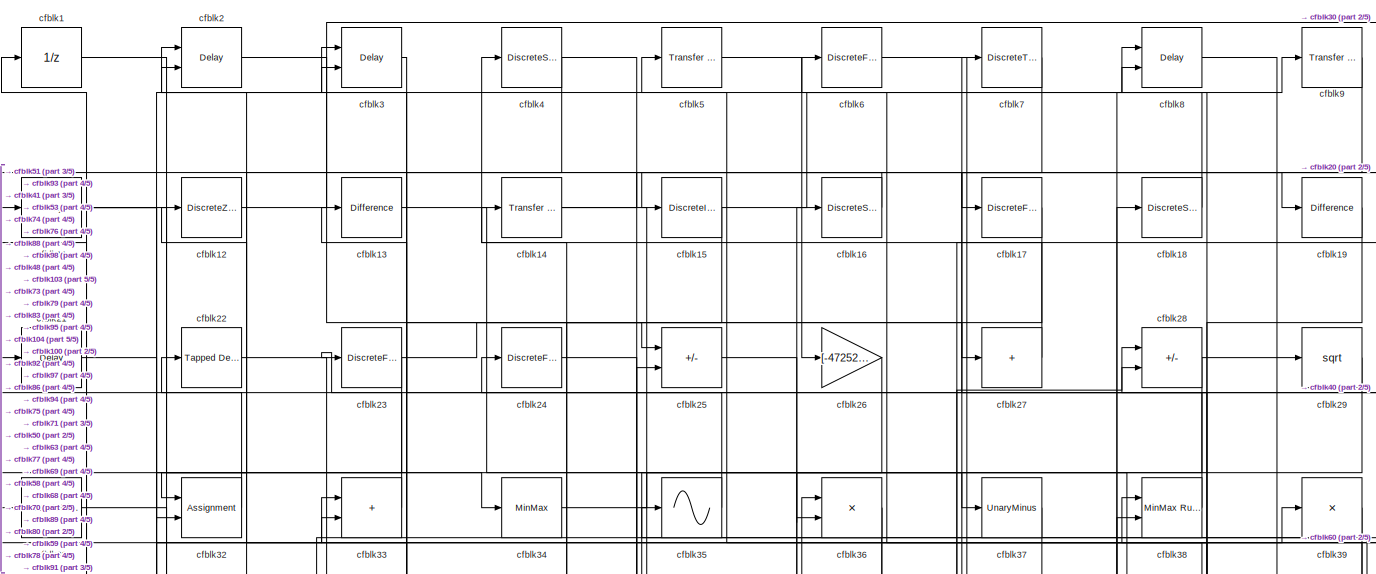
[diagram: root canvas - part 1/5, full width, top band]
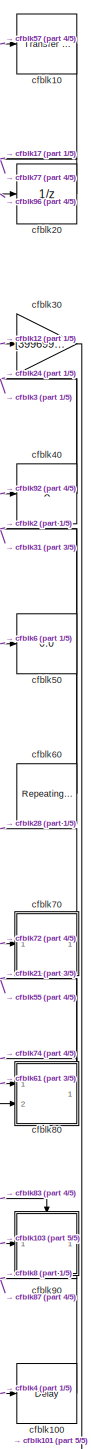
[diagram: root canvas - part 2/5, right side, full height]
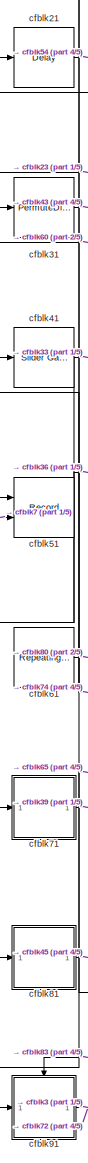
[diagram: root canvas - part 3/5, middle left region]
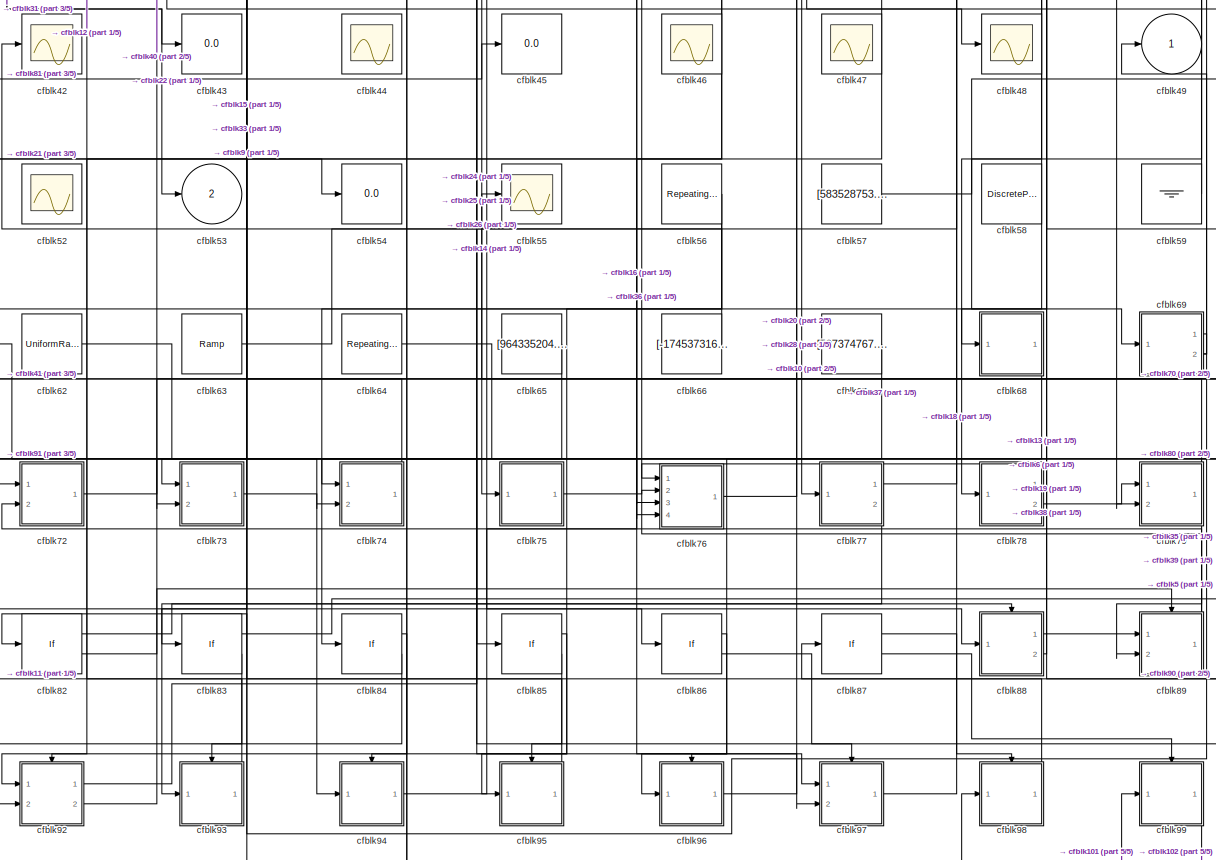
[diagram: root canvas - part 4/5, full width, middle band]
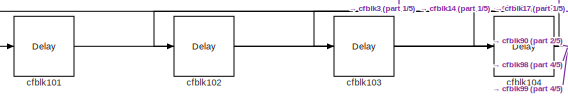
[diagram: root canvas - part 5/5, bottom left region]
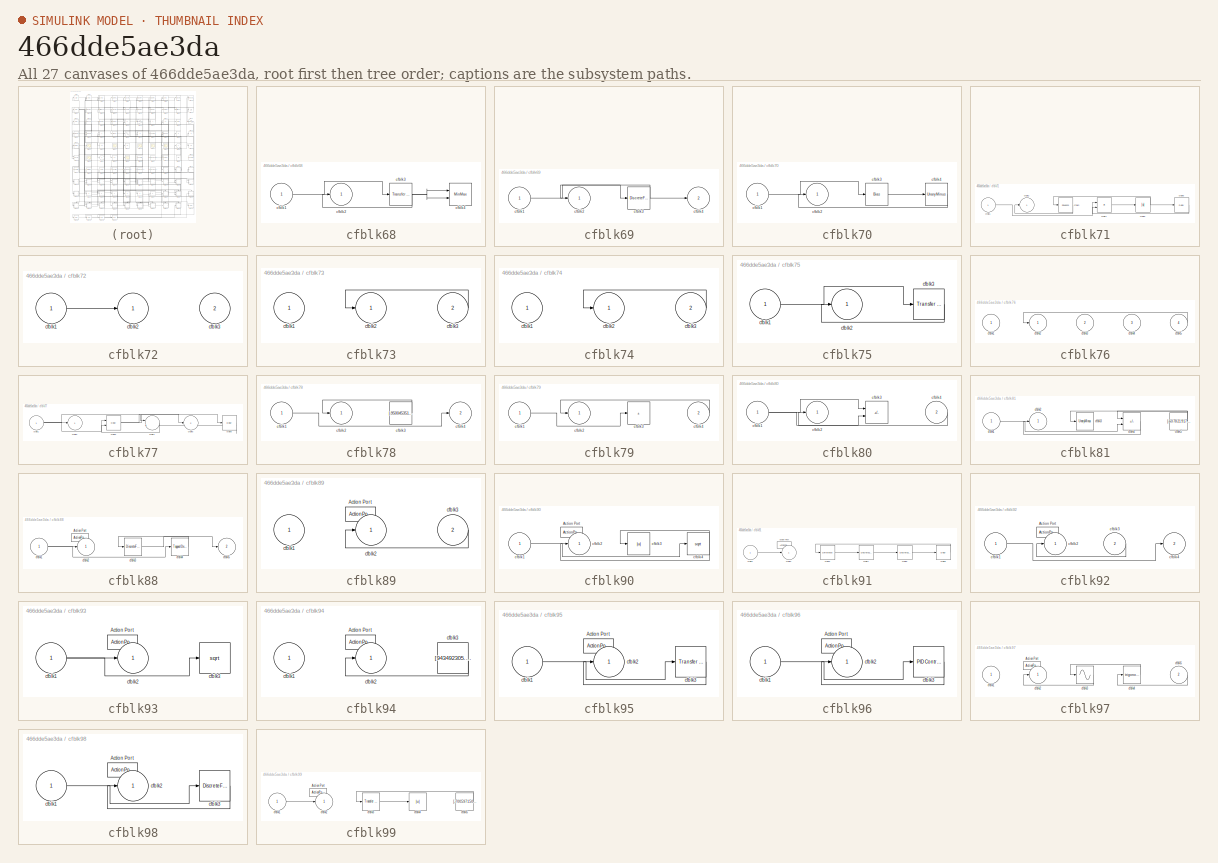
[diagram: thumbnail index - all 27 canvases of the model, root first then tree order]
MODEL slx_466dde5ae3da
KIND model
CONFIG AbsTol = auto
CONFIG EnableMultiTasking = off
CONFIG FixedStep = auto
CONFIG MaxStep = auto
CONFIG MinStep = auto
CONFIG RelTol = 1e-3
CONFIG SampleTimeConstraint = Unconstrained
CONFIG SolverName = VariableStepAuto
CONFIG StartTime = 0.0
CONFIG StopTime = 10.0
BLOCK [UnitDelay] cfblk1
  HasFrameUpgradeWarning = on
BLOCK [Reference] cfblk10  REF=simulink/Discrete/Transfer Fcn
Lead or Lag
  Ports = [1, 1]
  SourceBlock = simulink/Discrete/Transfer Fcn\nLead or Lag
  SourceProductBaseCode = SL
  SourceType = Lead or Lag Compensator
BLOCK [Delay] cfblk100
  InputPortMap = u0
  Ports = [1, 1]
  SampleTime = 1
BLOCK [Delay] cfblk101
  InputPortMap = u0
  Ports = [1, 1]
  SampleTime = 1
BLOCK [Delay] cfblk102
  InputPortMap = u0
  Ports = [1, 1]
  SampleTime = 1
BLOCK [Delay] cfblk103
  InputPortMap = u0
  Ports = [1, 1]
  SampleTime = 1
BLOCK [Delay] cfblk104
  InputPortMap = u0
  Ports = [1, 1]
  SampleTime = 1
BLOCK [Delay] cfblk11
  InputPortMap = u0
  Ports = [1, 1]
  SampleTime = 1
BLOCK [DiscreteZeroPole] cfblk12
  Gain = 1
  Poles = [0 0.5]
BLOCK [Reference] cfblk13  REF=simulink/Discrete/Difference
  Ports = [1, 1]
  SourceBlock = simulink/Discrete/Difference
  SourceProductBaseCode = SL
  SourceType = Difference
BLOCK [Reference] cfblk14  REF=simulink/Discrete/Transfer Fcn
Real Zero
  Ports = [1, 1]
  SourceBlock = simulink/Discrete/Transfer Fcn\nReal Zero
  SourceProductBaseCode = SL
  SourceType = Transfer Fcn Real Zero
BLOCK [DiscreteIntegrator] cfblk15
  ICPrevOutput = DiscIntNeverNeededParam
  ICPrevScaledInput = DiscIntNeverNeededParam
  InitialConditionSetting = Auto
  Ports = [1, 1]
BLOCK [DiscreteStateSpace] cfblk16
BLOCK [DiscreteFilter] cfblk17
  InputPortMap = u0
  Ports = [1, 1]
  SampleTime = 1
BLOCK [DiscreteStateSpace] cfblk18
BLOCK [Reference] cfblk19  REF=simulink/Discrete/Difference
  Ports = [1, 1]
  SourceBlock = simulink/Discrete/Difference
  SourceProductBaseCode = SL
  SourceType = Difference
BLOCK [Delay] cfblk2
  InputPortMap = u0,e6
  Ports = [2, 1]
  SampleTime = 1
  ShowEnablePort = on
BLOCK [UnitDelay] cfblk20
  HasFrameUpgradeWarning = on
BLOCK [Delay] cfblk21
  InputPortMap = u0
  Ports = [1, 1]
  SampleTime = 1
BLOCK [Reference] cfblk22  REF=simulink/Discrete/Tapped Delay
  Ports = [1, 1]
  SourceBlock = simulink/Discrete/Tapped Delay
  SourceProductBaseCode = SL
  SourceType = Tapped Delay Line
BLOCK [DiscreteFir] cfblk23
  InputPortMap = u0
  OutputPortMap = o0
  Ports = [1, 1]
  SampleTime = 1
BLOCK [DiscreteFilter] cfblk24
  InputPortMap = u0
  Ports = [1, 1]
  SampleTime = 1
BLOCK [Sum] cfblk25
  IconShape = rectangular
  Inputs = +-
  Ports = [2, 1]
BLOCK [Gain] cfblk26
  Gain = [-472524367.024752]
BLOCK [Sum] cfblk27
  IconShape = rectangular
  Inputs = +
  Ports = [1, 1]
BLOCK [Sum] cfblk28
  IconShape = rectangular
  Inputs = --
  Ports = [2, 1]
BLOCK [Sqrt] cfblk29
BLOCK [Delay] cfblk3
  DelayLengthSource = Input port
  InputPortMap = u0,p1
  Ports = [2, 1]
  SampleTime = 1
BLOCK [Gain] cfblk30
  Gain = [399699221.381525]
BLOCK [PermuteDimensions] cfblk31
BLOCK [Assignment] cfblk32
  DiagnosticForDimensions = Warning
  IndexOptions = Index vector (dialog)
  Indices = 1
  OutputSizes = 1
  Ports = [2, 1]
BLOCK [Sum] cfblk33
  IconShape = rectangular
  Ports = [2, 1]
BLOCK [MinMax] cfblk34
  Function = max
  Ports = [1, 1]
BLOCK [Sin] cfblk35
  Ports = [1, 1]
  SampleTime = 0
  TimeSource = Use external signal
BLOCK [Product] cfblk36
  Ports = [2, 1]
BLOCK [UnaryMinus] cfblk37
BLOCK [Reference] cfblk38  REF=simulink/Math
Operations/MinMax
Running
Resettable
  Ports = [2, 1]
  SourceBlock = simulink/Math\nOperations/MinMax\nRunning\nResettable
  SourceProductBaseCode = SL
  SourceType = MinMax Running Resettable
BLOCK [Product] cfblk39
  Inputs = *
  Ports = [1, 1]
BLOCK [DiscreteStateSpace] cfblk4
BLOCK [Product] cfblk40
  Inputs = *
  Ports = [1, 1]
BLOCK [Reference] cfblk41  REF=simulink/Math
Operations/Slider
Gain
  Ports = [1, 1]
  SourceBlock = simulink/Math\nOperations/Slider\nGain
  SourceProductBaseCode = SL
  SourceType = Slider Gain
BLOCK [Scope] cfblk42
  Floating = off
  NumInputPorts = 1
  Ports = [1]
BLOCK [Display] cfblk43
  Decimation = 1
  Ports = [1]
BLOCK [Scope] cfblk44
  Floating = on
  NumInputPorts = 1
  Ports = []
BLOCK [Display] cfblk45
  Decimation = 1
  Ports = [1]
BLOCK [Scope] cfblk46
  Floating = on
  NumInputPorts = 1
  Ports = []
BLOCK [Scope] cfblk47
  Floating = on
  NumInputPorts = 1
  Ports = []
BLOCK [Scope] cfblk48
  Floating = off
  NumInputPorts = 1
  Ports = [1]
BLOCK [Outport] cfblk49
BLOCK [Reference] cfblk5  REF=simulink/Discrete/Transfer Fcn
Lead or Lag
  Ports = [1, 1]
  SourceBlock = simulink/Discrete/Transfer Fcn\nLead or Lag
  SourceProductBaseCode = SL
  SourceType = Lead or Lag Compensator
BLOCK [Display] cfblk50
  Decimation = 1
  Ports = [1]
BLOCK [Record] cfblk51
  CompatibilityTag = XY
  FileSettingsInternal = {"entries":[{"content":{"excelSettings":{"content":{},"type":"Streamout.ExcelSettings"}},"type":"Streamout.FileSettingStorage","uuid":"e13d3856-0151-4027-9874-799dcbb3d0c3"}],"packageUris":["http://schema.mathworks.com/mf0/streamout_blocks/R2020a"],"version":"1.0"}
  Layout = [1 1]
  Ports = [2]
  SignalsInternal = {"entries":[{"content":{"signals":[{"content":{"blockPath":["sampleModel279/cfblk51"],"channel":[],"dimensions":[1],"domain":"sampleModel279/cfblk51","lineColor":"#a2142f","plots":[1],"port":1,"sid":[""],"signalID":11815,"signalName":"cfblk23"},"type":"RecordBlkView.Signal","uuid":"6bdaff20-d8c6-4827-94f0-403183801f87"},{"content":{"blockPath":["sampleModel279/cfblk51"],"channel":[],"dimensions":[...<+384ch>
  VisualizationBindings = {"xyplotplugin":{"info":[{"series":[{"bindingParametersList":[{"parameter":"X-Axis","signalID":11815,"signalName":"cfblk23"},{"parameter":"Y-Axis","signalID":11819,"signalName":"cfblk7"}],"seriesID":62469}],"subplotID":1}]}}
BLOCK [Scope] cfblk52
  Floating = on
  NumInputPorts = 1
  Ports = []
BLOCK [Outport] cfblk53
  Port = 2
BLOCK [Display] cfblk54
  Decimation = 1
  Ports = [1]
BLOCK [Scope] cfblk55
  Floating = off
  NumInputPorts = 1
  Ports = [1]
BLOCK [Reference] cfblk56  REF=simulink/Sources/Repeating
Sequence
Interpolated
  Ports = [0, 1]
  SourceBlock = simulink/Sources/Repeating\nSequence\nInterpolated
  SourceProductBaseCode = SL
  SourceType = Repeating Sequence Interpolated
BLOCK [Constant] cfblk57
  SampleTime = 1
  Value = [583528753.265346]
BLOCK [DiscretePulseGenerator] cfblk58
  Amplitude = [-608958195.192248]
  Period = [96930117.264674]
  PhaseDelay = [9.000000]
  Ports = [0, 1]
  PulseType = Time based
  PulseWidth = 5
BLOCK [Ground] cfblk59
BLOCK [DiscreteFilter] cfblk6
  InputPortMap = u0
  Ports = [1, 1]
  SampleTime = 1
BLOCK [Reference] cfblk60  REF=simulink/Sources/Repeating
Sequence
Interpolated
  Ports = [0, 1]
  SourceBlock = simulink/Sources/Repeating\nSequence\nInterpolated
  SourceProductBaseCode = SL
  SourceType = Repeating Sequence Interpolated
BLOCK [Reference] cfblk61  REF=simulink/Sources/Repeating
Sequence
  Ports = [0, 1]
  SourceBlock = simulink/Sources/Repeating\nSequence
  SourceProductBaseCode = SL
  SourceType = Repeating table
BLOCK [UniformRandomNumber] cfblk62
  Maximum = [2711065953.177605]
  Minimum = [-6293746588.256409]
  SampleTime = 0.1
  Seed = [99812368.000000]
BLOCK [Reference] cfblk63  REF=simulink/Sources/Ramp
  Ports = [0, 1]
  SourceBlock = simulink/Sources/Ramp
  SourceProductBaseCode = SL
  SourceType = Ramp
BLOCK [Reference] cfblk64  REF=simulink/Sources/Repeating
Sequence
Stair
  Ports = [0, 1]
  SourceBlock = simulink/Sources/Repeating\nSequence\nStair
  SourceProductBaseCode = SL
  SourceType = Repeating Sequence Stair
BLOCK [Constant] cfblk65
  SampleTime = 1
  Value = [964335204.110092]
BLOCK [Constant] cfblk66
  SampleTime = 1
  Value = [-174537316.929179]
BLOCK [Constant] cfblk67
  SampleTime = 1
  Value = [507374767.085922]
BLOCK [SubSystem] cfblk68
  Ports = [1, 1]
  RequestExecContextInheritance = off
BLOCK [Inport] cfblk68/cfblk1
BLOCK [Outport] cfblk68/cfblk2
BLOCK [Reference] cfblk68/cfblk3  REF=simulink/Discrete/Transfer Fcn
Lead or Lag
  Ports = [1, 1]
  SourceBlock = simulink/Discrete/Transfer Fcn\nLead or Lag
  SourceProductBaseCode = SL
  SourceType = Lead or Lag Compensator
BLOCK [MinMax] cfblk68/cfblk4
  Inputs = 2
  Ports = [2, 1]
BLOCK [SubSystem] cfblk69
  Ports = [1, 2]
  RequestExecContextInheritance = off
BLOCK [Inport] cfblk69/cfblk1
BLOCK [Outport] cfblk69/cfblk2
BLOCK [DiscreteFir] cfblk69/cfblk3
  InputPortMap = u0
  OutputPortMap = o0
  Ports = [1, 1]
  SampleTime = 1
BLOCK [Outport] cfblk69/cfblk4
  Port = 2
BLOCK [DiscreteTransferFcn] cfblk7
  InputPortMap = u0
  Ports = [1, 1]
  SampleTime = 1
BLOCK [SubSystem] cfblk70
  Ports = [1, 1]
  RequestExecContextInheritance = off
BLOCK [Inport] cfblk70/cfblk1
BLOCK [Outport] cfblk70/cfblk2
BLOCK [Bias] cfblk70/cfblk3
  Bias = [-814915214.973825]
  SaturateOnIntegerOverflow = off
BLOCK [UnaryMinus] cfblk70/cfblk4
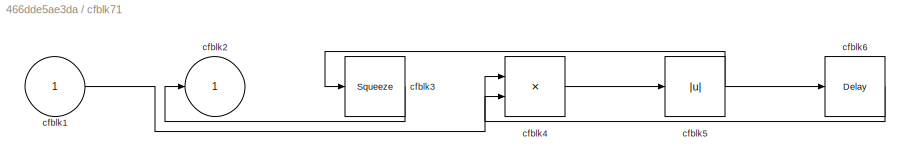
BLOCK [SubSystem] cfblk71
  Ports = [1, 1]
  RequestExecContextInheritance = off
BLOCK [Inport] cfblk71/cfblk1
BLOCK [Outport] cfblk71/cfblk2
BLOCK [Squeeze] cfblk71/cfblk3
BLOCK [Product] cfblk71/cfblk4
  Ports = [2, 1]
BLOCK [Abs] cfblk71/cfblk5
  SaturateOnIntegerOverflow = off
BLOCK [Delay] cfblk71/cfblk6
  InputPortMap = u0
  Ports = [1, 1]
  SampleTime = 1
BLOCK [SubSystem] cfblk72
  Ports = [2, 1]
  RequestExecContextInheritance = off
BLOCK [Inport] cfblk72/cfblk1
BLOCK [Outport] cfblk72/cfblk2
BLOCK [Inport] cfblk72/cfblk3
  Port = 2
BLOCK [SubSystem] cfblk73
  Ports = [2, 1]
  RequestExecContextInheritance = off
BLOCK [Inport] cfblk73/cfblk1
BLOCK [Outport] cfblk73/cfblk2
BLOCK [Inport] cfblk73/cfblk3
  Port = 2
BLOCK [SubSystem] cfblk74
  Ports = [2, 1]
  RequestExecContextInheritance = off
BLOCK [Inport] cfblk74/cfblk1
BLOCK [Outport] cfblk74/cfblk2
BLOCK [Inport] cfblk74/cfblk3
  Port = 2
BLOCK [SubSystem] cfblk75
  Ports = [1, 1]
  RequestExecContextInheritance = off
BLOCK [Inport] cfblk75/cfblk1
BLOCK [Outport] cfblk75/cfblk2
BLOCK [Reference] cfblk75/cfblk3  REF=simulink/Discrete/Transfer Fcn
First Order
  Ports = [1, 1]
  SourceBlock = simulink/Discrete/Transfer Fcn\nFirst Order
  SourceProductBaseCode = SL
  SourceType = First Order Transfer Fcn
BLOCK [SubSystem] cfblk76
  Ports = [4, 1]
  RequestExecContextInheritance = off
BLOCK [Inport] cfblk76/cfblk1
BLOCK [Outport] cfblk76/cfblk2
BLOCK [Inport] cfblk76/cfblk3
  Port = 2
BLOCK [Inport] cfblk76/cfblk4
  Port = 3
BLOCK [Inport] cfblk76/cfblk5
  Port = 4
BLOCK [SubSystem] cfblk77
  Ports = [1, 2]
  RequestExecContextInheritance = off
BLOCK [Inport] cfblk77/cfblk1
BLOCK [Outport] cfblk77/cfblk2
BLOCK [Delay] cfblk77/cfblk3
  InputPortMap = u0,e6
  Ports = [2, 1]
  SampleTime = 1
  ShowEnablePort = on
BLOCK [Sum] cfblk77/cfblk4
  Inputs = |++
  Ports = [2, 1]
BLOCK [Outport] cfblk77/cfblk5
  Port = 2
BLOCK [Delay] cfblk77/cfblk6
  InputPortMap = u0
  Ports = [1, 1]
  SampleTime = 1
BLOCK [SubSystem] cfblk78
  Ports = [1, 2]
  RequestExecContextInheritance = off
BLOCK [Inport] cfblk78/cfblk1
BLOCK [Outport] cfblk78/cfblk2
BLOCK [Constant] cfblk78/cfblk3
  SampleTime = 1
  Value = [-950045351.686305]
BLOCK [Outport] cfblk78/cfblk4
  Port = 2
BLOCK [SubSystem] cfblk79
  Ports = [2, 1]
  RequestExecContextInheritance = off
BLOCK [Inport] cfblk79/cfblk1
BLOCK [Outport] cfblk79/cfblk2
BLOCK [Sum] cfblk79/cfblk3
  IconShape = rectangular
  Inputs = +
  Ports = [1, 1]
BLOCK [Inport] cfblk79/cfblk4
  Port = 2
BLOCK [Delay] cfblk8
  InputPortMap = u0,e6
  Ports = [2, 1]
  SampleTime = 1
  ShowEnablePort = on
BLOCK [SubSystem] cfblk80
  Ports = [2, 1]
  RequestExecContextInheritance = off
BLOCK [Inport] cfblk80/cfblk1
BLOCK [Outport] cfblk80/cfblk2
BLOCK [Sum] cfblk80/cfblk3
  IconShape = rectangular
  Inputs = +-
  Ports = [2, 1]
BLOCK [Inport] cfblk80/cfblk4
  Port = 2
BLOCK [SubSystem] cfblk81
  Ports = [1, 1]
  RequestExecContextInheritance = off
BLOCK [Inport] cfblk81/cfblk1
BLOCK [Outport] cfblk81/cfblk2
BLOCK [UnaryMinus] cfblk81/cfblk3
BLOCK [Sum] cfblk81/cfblk4
  IconShape = rectangular
  Inputs = +-
  Ports = [2, 1]
BLOCK [Constant] cfblk81/cfblk5
  SampleTime = 1
  Value = [-607821917.068870]
BLOCK [If] cfblk82
  IfExpression = u1 >= 0
  Ports = [1, 2]
  SampleTime = 1
BLOCK [If] cfblk83
  IfExpression = u1 >= 0
  Ports = [1, 2]
  SampleTime = 1
BLOCK [If] cfblk84
  IfExpression = u1 >= 0
  Ports = [1, 2]
  SampleTime = 1
BLOCK [If] cfblk85
  IfExpression = u1 >= 0
  Ports = [1, 2]
  SampleTime = 1
BLOCK [If] cfblk86
  IfExpression = u1 >= 0
  Ports = [1, 2]
  SampleTime = 1
BLOCK [If] cfblk87
  IfExpression = u1 >= 0
  Ports = [1, 2]
  SampleTime = 1
BLOCK [SubSystem] cfblk88
  Ports = [1, 2, 0, 0, 0, 0, 0, 1]
  RequestExecContextInheritance = off
  TreatAsAtomicUnit = on
BLOCK [ActionPort] cfblk88/Action Port
  ActionPortLabel = if(u1 >= 0)
BLOCK [Inport] cfblk88/cfblk1
BLOCK [Outport] cfblk88/cfblk2
BLOCK [DiscreteFilter] cfblk88/cfblk3
  InputPortMap = u0
  Ports = [1, 1]
BLOCK [Reference] cfblk88/cfblk4  REF=simulink/Discrete/Tapped Delay
  Ports = [1, 1]
  SourceBlock = simulink/Discrete/Tapped Delay
  SourceProductBaseCode = SL
  SourceType = Tapped Delay Line
BLOCK [Outport] cfblk88/cfblk5
  Port = 2
BLOCK [SubSystem] cfblk89
  Ports = [2, 1, 0, 0, 0, 0, 0, 1]
  RequestExecContextInheritance = off
  TreatAsAtomicUnit = on
BLOCK [ActionPort] cfblk89/Action Port
  ActionPortLabel = else
BLOCK [Inport] cfblk89/cfblk1
BLOCK [Outport] cfblk89/cfblk2
BLOCK [Inport] cfblk89/cfblk3
  Port = 2
BLOCK [Reference] cfblk9  REF=simulink/Discrete/Transfer Fcn
Real Zero
  Ports = [1, 1]
  SourceBlock = simulink/Discrete/Transfer Fcn\nReal Zero
  SourceProductBaseCode = SL
  SourceType = Transfer Fcn Real Zero
BLOCK [SubSystem] cfblk90
  Ports = [1, 1, 0, 0, 0, 0, 0, 1]
  RequestExecContextInheritance = off
  TreatAsAtomicUnit = on
BLOCK [ActionPort] cfblk90/Action Port
  ActionPortLabel = if(u1 >= 0)
BLOCK [Inport] cfblk90/cfblk1
BLOCK [Outport] cfblk90/cfblk2
BLOCK [Abs] cfblk90/cfblk3
  SaturateOnIntegerOverflow = off
BLOCK [Sqrt] cfblk90/cfblk4
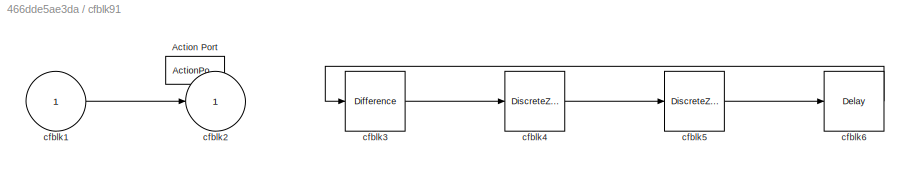
BLOCK [SubSystem] cfblk91
  Ports = [1, 1, 0, 0, 0, 0, 0, 1]
  RequestExecContextInheritance = off
  TreatAsAtomicUnit = on
BLOCK [ActionPort] cfblk91/Action Port
  ActionPortLabel = else
BLOCK [Inport] cfblk91/cfblk1
BLOCK [Outport] cfblk91/cfblk2
BLOCK [Reference] cfblk91/cfblk3  REF=simulink/Discrete/Difference
  Ports = [1, 1]
  SourceBlock = simulink/Discrete/Difference
  SourceProductBaseCode = SL
  SourceType = Difference
BLOCK [DiscreteZeroPole] cfblk91/cfblk4
  Gain = 1
  Poles = [0 0.5]
  SampleTime = -1
BLOCK [DiscreteZeroPole] cfblk91/cfblk5
  Gain = 1
  Poles = [0 0.5]
  SampleTime = -1
BLOCK [Delay] cfblk91/cfblk6
  InputPortMap = u0
  Ports = [1, 1]
BLOCK [SubSystem] cfblk92
  Ports = [2, 2, 0, 0, 0, 0, 0, 1]
  RequestExecContextInheritance = off
  TreatAsAtomicUnit = on
BLOCK [ActionPort] cfblk92/Action Port
  ActionPortLabel = if(u1 >= 0)
BLOCK [Inport] cfblk92/cfblk1
BLOCK [Outport] cfblk92/cfblk2
BLOCK [Inport] cfblk92/cfblk3
  Port = 2
BLOCK [Outport] cfblk92/cfblk4
  Port = 2
BLOCK [SubSystem] cfblk93
  Ports = [1, 1, 0, 0, 0, 0, 0, 1]
  RequestExecContextInheritance = off
  TreatAsAtomicUnit = on
BLOCK [ActionPort] cfblk93/Action Port
  ActionPortLabel = else
BLOCK [Inport] cfblk93/cfblk1
BLOCK [Outport] cfblk93/cfblk2
BLOCK [Sqrt] cfblk93/cfblk3
BLOCK [SubSystem] cfblk94
  Ports = [1, 1, 0, 0, 0, 0, 0, 1]
  RequestExecContextInheritance = off
  TreatAsAtomicUnit = on
BLOCK [ActionPort] cfblk94/Action Port
  ActionPortLabel = if(u1 >= 0)
BLOCK [Inport] cfblk94/cfblk1
BLOCK [Outport] cfblk94/cfblk2
BLOCK [Constant] cfblk94/cfblk3
  SampleTime = 1
  Value = [943492305.523102]
BLOCK [SubSystem] cfblk95
  Ports = [1, 1, 0, 0, 0, 0, 0, 1]
  RequestExecContextInheritance = off
  TreatAsAtomicUnit = on
BLOCK [ActionPort] cfblk95/Action Port
  ActionPortLabel = else
BLOCK [Inport] cfblk95/cfblk1
BLOCK [Outport] cfblk95/cfblk2
BLOCK [Reference] cfblk95/cfblk3  REF=simulink/Discrete/Transfer Fcn
Real Zero
  Ports = [1, 1]
  SourceBlock = simulink/Discrete/Transfer Fcn\nReal Zero
  SourceProductBaseCode = SL
  SourceType = Transfer Fcn Real Zero
BLOCK [SubSystem] cfblk96
  Ports = [1, 1, 0, 0, 0, 0, 0, 1]
  RequestExecContextInheritance = off
  TreatAsAtomicUnit = on
BLOCK [ActionPort] cfblk96/Action Port
  ActionPortLabel = if(u1 >= 0)
BLOCK [Inport] cfblk96/cfblk1
BLOCK [Outport] cfblk96/cfblk2
BLOCK [Reference] cfblk96/cfblk3  REF=slpidlib/PID Controller
  Ports = [1, 1]
  SourceBlock = slpidlib/PID Controller
  SourceProductBaseCode = SL
  SourceType = PID 1dof
BLOCK [SubSystem] cfblk97
  Ports = [2, 1, 0, 0, 0, 0, 0, 1]
  RequestExecContextInheritance = off
  TreatAsAtomicUnit = on
BLOCK [ActionPort] cfblk97/Action Port
  ActionPortLabel = else
BLOCK [Inport] cfblk97/cfblk1
BLOCK [Outport] cfblk97/cfblk2
BLOCK [Sin] cfblk97/cfblk3
  Ports = [1, 1]
  SampleTime = 0
  TimeSource = Use external signal
BLOCK [Trigonometry] cfblk97/cfblk4
  Ports = [1, 1]
BLOCK [Inport] cfblk97/cfblk5
  Port = 2
BLOCK [SubSystem] cfblk98
  Ports = [1, 1, 0, 0, 0, 0, 0, 1]
  RequestExecContextInheritance = off
  TreatAsAtomicUnit = on
BLOCK [ActionPort] cfblk98/Action Port
  ActionPortLabel = if(u1 >= 0)
BLOCK [Inport] cfblk98/cfblk1
BLOCK [Outport] cfblk98/cfblk2
BLOCK [DiscreteFilter] cfblk98/cfblk3
  InputPortMap = u0
  Ports = [1, 1]
BLOCK [SubSystem] cfblk99
  Ports = [1, 1, 0, 0, 0, 0, 0, 1]
  RequestExecContextInheritance = off
  TreatAsAtomicUnit = on
BLOCK [ActionPort] cfblk99/Action Port
  ActionPortLabel = else
BLOCK [Inport] cfblk99/cfblk1
BLOCK [Outport] cfblk99/cfblk2
BLOCK [Reference] cfblk99/cfblk3  REF=simulink/Discrete/Transfer Fcn
Real Zero
  Ports = [1, 1]
  SourceBlock = simulink/Discrete/Transfer Fcn\nReal Zero
  SourceProductBaseCode = SL
  SourceType = Transfer Fcn Real Zero
BLOCK [Abs] cfblk99/cfblk4
  SaturateOnIntegerOverflow = off
BLOCK [Constant] cfblk99/cfblk5
  SampleTime = 1
  Value = [-700597150.862363]
LINE cfblk100:1 -> cfblk8:2
LINE cfblk101:1 -> cfblk99:1
LINE cfblk102:1 -> cfblk98:1
LINE cfblk103:1 -> cfblk90:1
LINE cfblk104:1 -> cfblk14:1
LINE cfblk10:1 -> cfblk77:1
NET cfblk11:1 -> cfblk53:1, cfblk74:2, cfblk76:3, cfblk88:1
LINE cfblk12:1 -> cfblk30:1
LINE cfblk13:1 -> cfblk69:1
NET cfblk14:1 -> cfblk19:1, cfblk86:1
NET cfblk15:1 -> cfblk83:1, cfblk8:1
LINE cfblk16:1 -> cfblk15:1
LINE cfblk17:1 -> cfblk104:1
LINE cfblk18:1 -> cfblk2:1
LINE cfblk19:1 -> cfblk68:1
LINE cfblk1:1 -> cfblk34:1
LINE cfblk20:1 -> cfblk17:1
LINE cfblk21:1 -> cfblk54:1
LINE cfblk22:1 -> cfblk48:1
NET cfblk23:1 -> cfblk27:1, cfblk51:1
LINE cfblk24:1 -> cfblk97:1
LINE cfblk25:1 -> cfblk97:2
LINE cfblk26:1 -> cfblk75:1
LINE cfblk27:1 -> cfblk4:1
NET cfblk28:1 -> cfblk32:2, cfblk80:2
LINE cfblk29:1 -> cfblk36:2
LINE cfblk2:1 -> cfblk25:1
LINE cfblk30:1 -> cfblk101:1
LINE cfblk31:1 -> cfblk43:1
LINE cfblk32:1 -> cfblk22:1
LINE cfblk33:1 -> cfblk23:1
LINE cfblk34:1 -> cfblk37:1
LINE cfblk35:1 -> cfblk1:1
NET cfblk36:1 -> cfblk71:1, cfblk76:4
LINE cfblk37:1 -> cfblk92:1
LINE cfblk38:1 -> cfblk7:1
LINE cfblk39:1 -> cfblk78:1
LINE cfblk3:1 -> cfblk103:1
NET cfblk40:1 -> cfblk24:1, cfblk3:1
NET cfblk41:1 -> cfblk33:1, cfblk81:1
NET cfblk4:1 -> cfblk100:1, cfblk32:1
NET cfblk56:1 -> cfblk84:1, cfblk95:1
LINE cfblk57:1 -> cfblk10:1
NET cfblk58:1 -> cfblk6:1, cfblk92:2
LINE cfblk59:1 -> cfblk5:1
LINE cfblk5:1 -> cfblk26:1
NET cfblk60:1 -> cfblk2:2, cfblk31:1
LINE cfblk61:1 -> cfblk80:1
LINE cfblk62:1 -> cfblk85:1
LINE cfblk63:1 -> cfblk38:2
LINE cfblk64:1 -> cfblk79:2
LINE cfblk65:1 -> cfblk91:1
LINE cfblk66:1 -> cfblk42:1
LINE cfblk67:1 -> cfblk96:1
LINE cfblk68/cfblk1:1 -> cfblk68/cfblk3:1
NET cfblk68/cfblk3:1 -> cfblk68/cfblk2:1, cfblk68/cfblk4:1, cfblk68/cfblk4:2
LINE cfblk68:1 -> cfblk73:2
LINE cfblk69/cfblk1:1 -> cfblk69/cfblk3:1
NET cfblk69/cfblk3:1 -> cfblk69/cfblk2:1, cfblk69/cfblk4:1
LINE cfblk69:1 -> cfblk82:1
NET cfblk69:2 -> cfblk35:1, cfblk49:1
LINE cfblk6:1 -> cfblk50:1
LINE cfblk70/cfblk1:1 -> cfblk70/cfblk3:1
LINE cfblk70/cfblk3:1 -> cfblk70/cfblk4:1
LINE cfblk70/cfblk4:1 -> cfblk70/cfblk2:1
LINE cfblk70:1 -> cfblk28:1
LINE cfblk71/cfblk1:1 -> cfblk71/cfblk4:1
LINE cfblk71/cfblk3:1 -> cfblk71/cfblk2:1
LINE cfblk71/cfblk4:1 -> cfblk71/cfblk5:1
NET cfblk71/cfblk5:1 -> cfblk71/cfblk3:1, cfblk71/cfblk6:1
LINE cfblk71/cfblk6:1 -> cfblk71/cfblk4:2
LINE cfblk71:1 -> cfblk39:1
LINE cfblk72/cfblk1:1 -> cfblk72/cfblk2:1
LINE cfblk72:1 -> cfblk70:1
LINE cfblk73/cfblk3:1 -> cfblk73/cfblk2:1
LINE cfblk73:1 -> cfblk94:1
LINE cfblk74/cfblk3:1 -> cfblk74/cfblk2:1
LINE cfblk74:1 -> cfblk41:1
LINE cfblk75/cfblk1:1 -> cfblk75/cfblk3:1
LINE cfblk75/cfblk3:1 -> cfblk75/cfblk2:1
LINE cfblk75:1 -> cfblk36:1
LINE cfblk76/cfblk5:1 -> cfblk76/cfblk2:1
LINE cfblk76:1 -> cfblk28:2
NET cfblk77/cfblk1:1 -> cfblk77/cfblk2:1, cfblk77/cfblk3:2, cfblk77/cfblk4:1
NET cfblk77/cfblk3:1 -> cfblk77/cfblk5:1, cfblk77/cfblk6:1
LINE cfblk77/cfblk4:1 -> cfblk77/cfblk3:1
LINE cfblk77/cfblk6:1 -> cfblk77/cfblk4:2
LINE cfblk77:1 -> cfblk18:1
LINE cfblk77:2 -> cfblk93:1
LINE cfblk78/cfblk1:1 -> cfblk78/cfblk4:1
LINE cfblk78/cfblk3:1 -> cfblk78/cfblk2:1
LINE cfblk78:1 -> cfblk76:1
LINE cfblk78:2 -> cfblk79:1
LINE cfblk79/cfblk1:1 -> cfblk79/cfblk3:1
LINE cfblk79/cfblk4:1 -> cfblk79/cfblk2:1
NET cfblk79:1 -> cfblk33:2, cfblk89:2
LINE cfblk7:1 -> cfblk51:2
NET cfblk80/cfblk1:1 -> cfblk80/cfblk3:1, cfblk80/cfblk3:2
LINE cfblk80/cfblk4:1 -> cfblk80/cfblk2:1
NET cfblk80:1 -> cfblk21:1, cfblk55:1, cfblk74:1
LINE cfblk81/cfblk1:1 -> cfblk81/cfblk4:2
LINE cfblk81/cfblk4:1 -> cfblk81/cfblk2:1
NET cfblk81/cfblk5:1 -> cfblk81/cfblk3:1, cfblk81/cfblk4:1
LINE cfblk81:1 -> cfblk45:1
LINE cfblk82:1 -> cfblk88:ifaction
LINE cfblk82:2 -> cfblk89:ifaction
LINE cfblk83:1 -> cfblk90:ifaction
LINE cfblk83:2 -> cfblk91:ifaction
LINE cfblk84:1 -> cfblk92:ifaction
LINE cfblk84:2 -> cfblk93:ifaction
LINE cfblk85:1 -> cfblk94:ifaction
LINE cfblk85:2 -> cfblk95:ifaction
LINE cfblk86:1 -> cfblk96:ifaction
LINE cfblk86:2 -> cfblk97:ifaction
LINE cfblk87:1 -> cfblk98:ifaction
LINE cfblk87:2 -> cfblk99:ifaction
NET cfblk88/cfblk1:1 -> cfblk88/cfblk2:1, cfblk88/cfblk4:1
LINE cfblk88/cfblk3:1 -> cfblk88/cfblk5:1
LINE cfblk88/cfblk4:1 -> cfblk88/cfblk3:1
LINE cfblk88:1 -> cfblk89:1
LINE cfblk88:2 -> cfblk72:2
LINE cfblk89/cfblk3:1 -> cfblk89/cfblk2:1
NET cfblk89:1 -> cfblk38:1, cfblk76:2
LINE cfblk8:1 -> cfblk29:1
LINE cfblk90/cfblk1:1 -> cfblk90/cfblk4:1
NET cfblk90/cfblk4:1 -> cfblk90/cfblk2:1, cfblk90/cfblk3:1
LINE cfblk90:1 -> cfblk87:1
LINE cfblk91/cfblk1:1 -> cfblk91/cfblk2:1
LINE cfblk91/cfblk3:1 -> cfblk91/cfblk4:1
LINE cfblk91/cfblk4:1 -> cfblk91/cfblk5:1
LINE cfblk91/cfblk5:1 -> cfblk91/cfblk6:1
LINE cfblk91/cfblk6:1 -> cfblk91/cfblk3:1
NET cfblk91:1 -> cfblk3:2, cfblk72:1
LINE cfblk92/cfblk1:1 -> cfblk92/cfblk4:1
LINE cfblk92/cfblk3:1 -> cfblk92/cfblk2:1
LINE cfblk92:1 -> cfblk25:2
LINE cfblk92:2 -> cfblk40:1
NET cfblk93/cfblk1:1 -> cfblk93/cfblk2:1, cfblk93/cfblk3:1
LINE cfblk93:1 -> cfblk11:1
LINE cfblk94/cfblk3:1 -> cfblk94/cfblk2:1
LINE cfblk94:1 -> cfblk16:1
LINE cfblk95/cfblk1:1 -> cfblk95/cfblk3:1
LINE cfblk95/cfblk3:1 -> cfblk95/cfblk2:1
LINE cfblk95:1 -> cfblk13:1
LINE cfblk96/cfblk1:1 -> cfblk96/cfblk3:1
LINE cfblk96/cfblk3:1 -> cfblk96/cfblk2:1
LINE cfblk96:1 -> cfblk20:1
LINE cfblk97/cfblk3:1 -> cfblk97/cfblk2:1
LINE cfblk97/cfblk4:1 -> cfblk97/cfblk3:1
LINE cfblk97/cfblk5:1 -> cfblk97/cfblk4:1
LINE cfblk97:1 -> cfblk9:1
LINE cfblk98/cfblk1:1 -> cfblk98/cfblk3:1
LINE cfblk98/cfblk3:1 -> cfblk98/cfblk2:1
LINE cfblk98:1 -> cfblk12:1
LINE cfblk99/cfblk1:1 -> cfblk99/cfblk2:1
LINE cfblk99/cfblk3:1 -> cfblk99/cfblk4:1
LINE cfblk99/cfblk5:1 -> cfblk99/cfblk3:1
LINE cfblk99:1 -> cfblk102:1
LINE cfblk9:1 -> cfblk73:1
note: NET lines group one-source signal fan-out (src -> all destinations, sorted); 1:1 wires keep LINE
